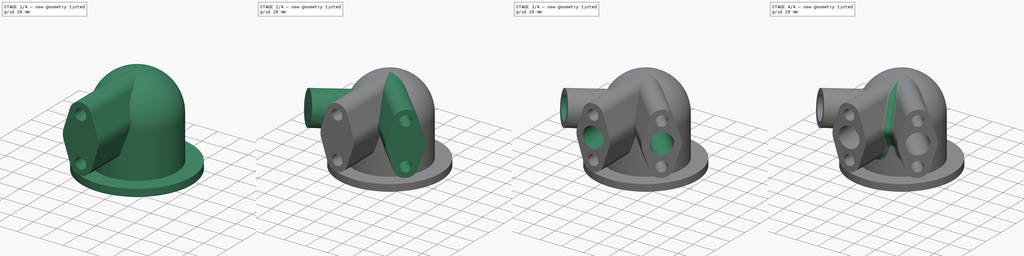
[diagram: build sequence overview — one tinted view per stage of 4, left to right]
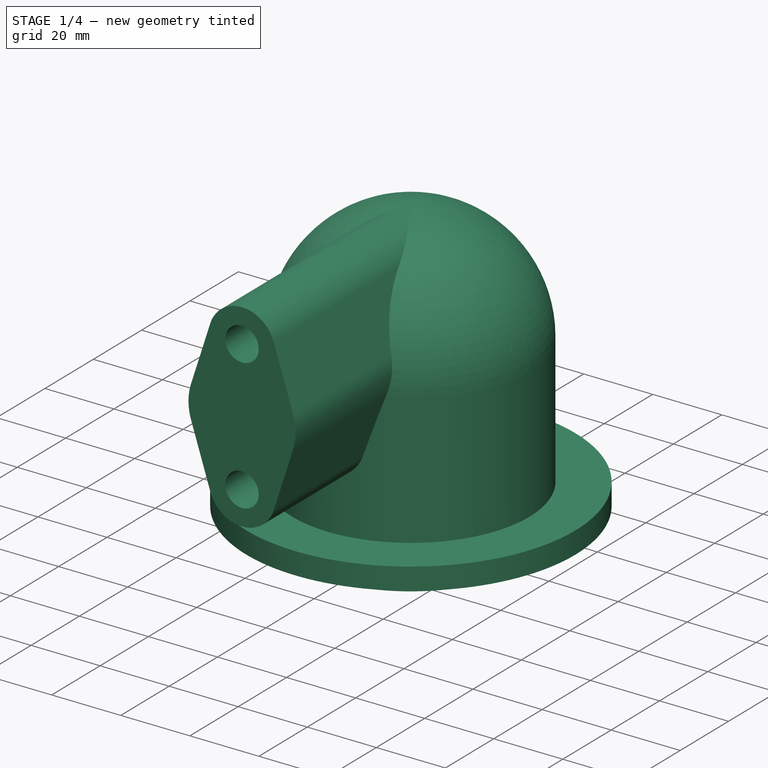
[diagram: stage 1 of 4 — iso view after this stage's code; geometry added in this stage tinted green]
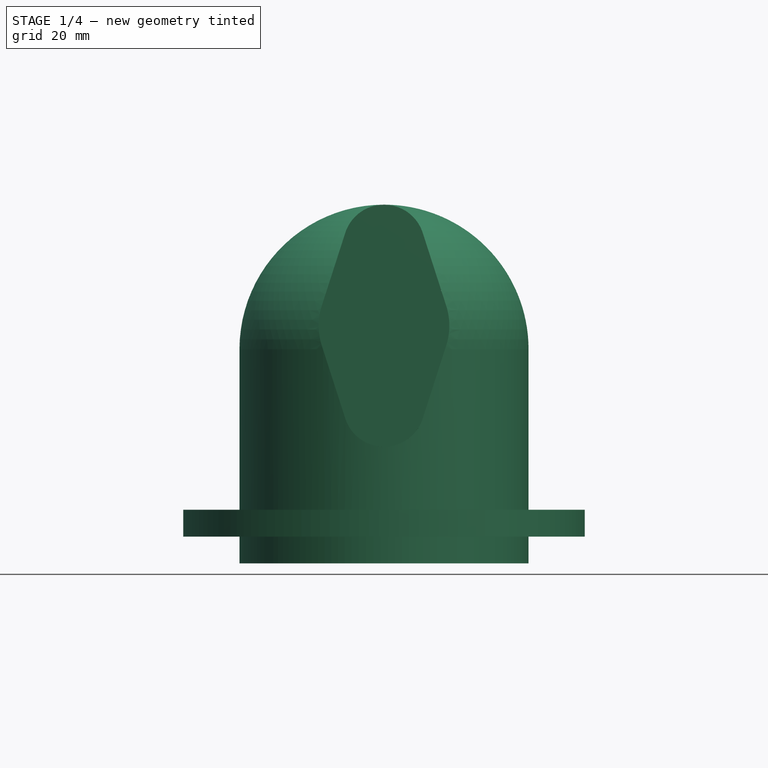
[diagram: stage 1 of 4 — front view after this stage's code; geometry added in this stage tinted green]
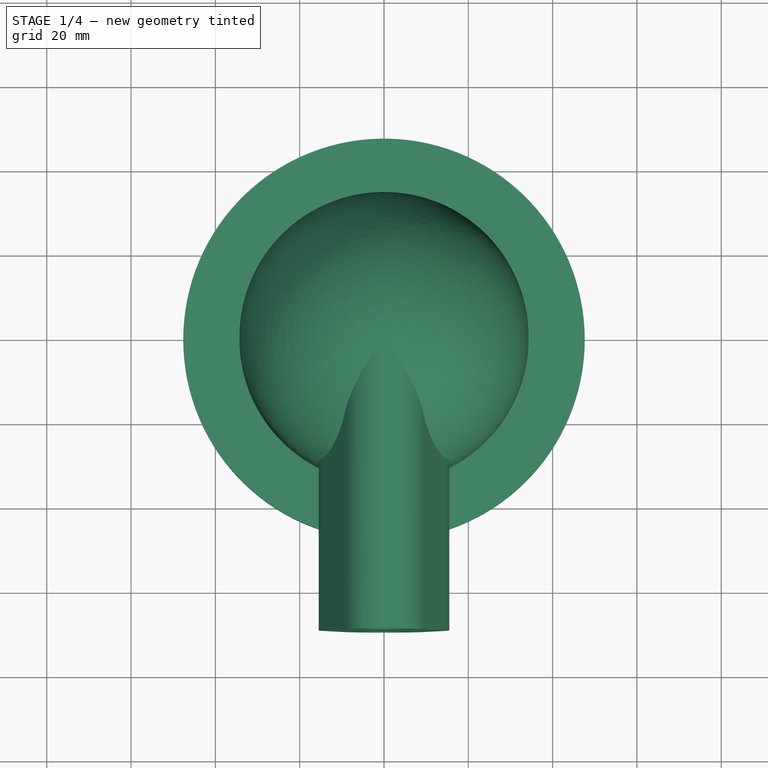
[diagram: stage 1 of 4 — top view after this stage's code; geometry added in this stage tinted green]
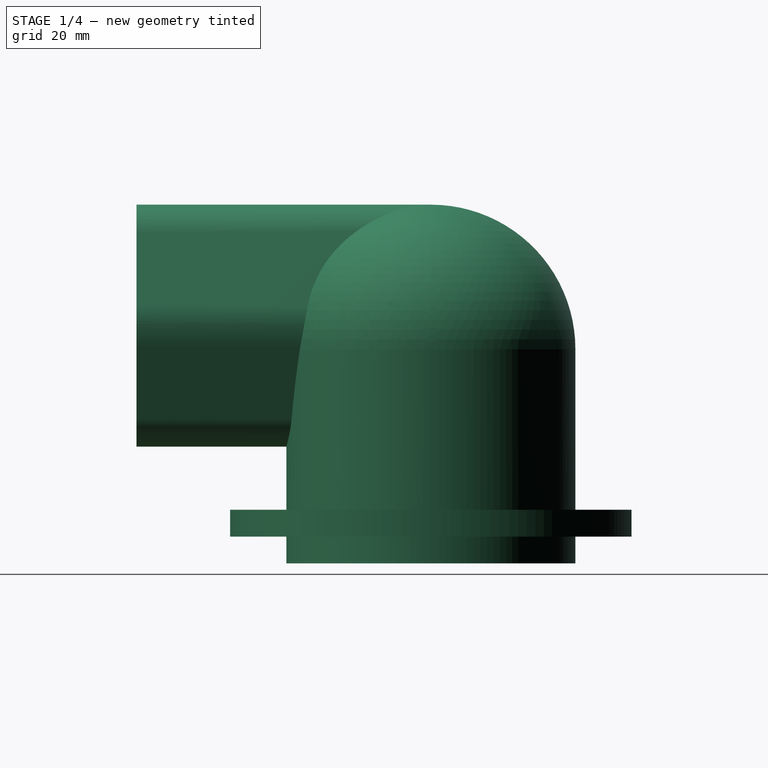
[diagram: stage 1 of 4 — right view after this stage's code; geometry added in this stage tinted green]
FCSTD DOCUMENT  (FreeCAD 1.1R39057 (Git))
Label: ModelMania_2010_D01
License: All rights reserved
LicenseURL: http://en.wikipedia.org/wiki/All_rights_reserved
objects: Sketcher::SketchObject×8, PartDesign::Pocket×3, PartDesign::Revolution×2, PartDesign::PolarPattern×2, PartDesign::Groove×2, PartDesign::Fillet×2, PartDesign::Pad×1, PartDesign::Body×1
note: 51 computed .brp shape members not serialized (recipe doc carries the construction recipe); baked Part::Feature solids carry a one-line shape summary decoded from their .brp

FEATURE [Sketcher::SketchObject] Sketch
  ArcFitTolerance = 0
  AttachmentSupport = -> [XZ_Plane]
  FullyConstrained = true
  MakeInternals = false
  MapMode = 5
  Placement = pos=(0,0,0) rot=(1,0,0;1.5708rad)
  sketch-geometry (8):
    g0: ArcOfCircle CenterX=0 CenterY=50.8 CenterZ=0 NormalX=0 NormalY=0 NormalZ=1 AngleXU=0 Radius=34.29 StartAngle=0 EndAngle=1.5708
    g1: LineSegment StartX=34.29 StartY=50.8 StartZ=0 EndX=34.29 EndY=12.7 EndZ=0
    g2: LineSegment StartX=34.29 StartY=0 StartZ=0 EndX=0 EndY=0 EndZ=0
    g3: LineSegment StartX=2.1e-15 StartY=85.09 StartZ=0 EndX=0 EndY=0 EndZ=0
    g4: LineSegment StartX=34.29 StartY=6.35 StartZ=0 EndX=47.625 EndY=6.35 EndZ=0
    g5: LineSegment StartX=47.625 StartY=6.35 StartZ=0 EndX=47.625 EndY=12.7 EndZ=0
    g6: LineSegment StartX=47.625 StartY=12.7 StartZ=0 EndX=34.29 EndY=12.7 EndZ=0
    g7: LineSegment StartX=34.29 StartY=6.35 StartZ=0 EndX=34.29 EndY=0 EndZ=0
  constraints (24):
    c: PointOnObject(g0,g-2)
    c: PointOnObject(g0,g-2)
    c: Horizontal(g0,g0)
    c: DistanceY(g-1,g0) = 85.09
    c: Radius(g0) = 34.29
    c: Tangent(g0,g1) = 1.5708
    c: Coincident(g3,g0)
    c: Coincident(g7,g2)
    c: Horizontal(g2)
    c: Coincident(g4,g5)
    c: Coincident(g5,g6)
    c: Vertical(g5)
    c: Horizontal(g4)
    c: Horizontal(g6)
    c: PointOnObject(g4,g7)
    c: Coincident(g1,g6)
    c: PointOnObject(g7,g4)
    c: Vertical(g7)
    c: Equal(g4,g6)
    c: DistanceY(g5,g5) = 6.35
    c: DistanceX(g4) = 47.625
    c: Coincident(g2,g-1)
    c: Coincident(g3,g2)
    c: Equal(g5,g7)
FEATURE [PartDesign::Revolution] Revolution  label="dome"
  Angle = 360
  Angle2 = 60
  Axis = (0,2e-16,1)
  Base = (0,0,0)
  Placement = pos=(0,0,0) rot=(1,0,0;1.5708rad)
  Profile = -> Sketch
  ReferenceAxis = -> Sketch [V_Axis]
  Refine = true
  Suppressed = false
  Type = 0
FEATURE [Sketcher::SketchObject] Sketch001
  ArcFitTolerance = 1e-06
  AttachmentSupport = -> [XZ_Plane]
  FullyConstrained = true
  MakeInternals = false
  MapMode = 5
  Placement = pos=(0,0,0) rot=(1,0,0;1.5708rad)
  sketch-geometry (9):
    g0: LineSegment [constr] StartX=0 StartY=75.438 StartZ=0 EndX=0 EndY=37.338 EndZ=0
    g1: ArcOfCircle CenterX=0 CenterY=75.438 CenterZ=0 NormalX=0 NormalY=0 NormalZ=1 AngleXU=0 Radius=9.652 StartAngle=0.311689 EndAngle=2.8299
    g2: ArcOfCircle CenterX=0 CenterY=37.338 CenterZ=0 NormalX=0 NormalY=0 NormalZ=1 AngleXU=0 Radius=9.652 StartAngle=3.45328 EndAngle=5.9715
    g3: ArcOfCircle CenterX=0 CenterY=56.388 CenterZ=0 NormalX=0 NormalY=0 NormalZ=1 AngleXU=0 Radius=15.494 StartAngle=2.8299 EndAngle=3.45328
    g4: ArcOfCircle CenterX=0 CenterY=56.388 CenterZ=0 NormalX=0 NormalY=0 NormalZ=1 AngleXU=0 Radius=15.494 StartAngle=5.9715 EndAngle=6.59487
    g5: LineSegment StartX=-14.7475 StartY=61.1395 StartZ=0 EndX=-9.18694 EndY=78.3979 EndZ=0
    g6: LineSegment StartX=9.18694 StartY=78.3979 StartZ=0 EndX=14.7475 EndY=61.1395 EndZ=0
    g7: LineSegment StartX=14.7475 StartY=51.6365 StartZ=0 EndX=9.18694 EndY=34.3781 EndZ=0
    g8: LineSegment StartX=-9.18694 StartY=34.3781 StartZ=0 EndX=-14.7475 EndY=51.6365 EndZ=0
  constraints (20):
    c: PointOnObject(g0,g-2)
    c: Vertical(g0)
    c: DistanceY(g0,g0) = 38.1
    c: Coincident(g1,g0)
    c: Coincident(g2,g0)
    c: Symmetric(g0,g0,g3)
    c: Coincident(g4,g3)
    c: Tangent(g7,g2) = 1.5708
    c: Tangent(g7,g4) = 1.5708
    c: Tangent(g6,g4) = 1.5708
    c: Tangent(g6,g1) = 1.5708
    c: Tangent(g5,g1) = 1.5708
    c: Tangent(g5,g3) = 1.5708
    c: Tangent(g8,g3) = 1.5708
    c: Tangent(g8,g2) = 1.5708
    c: Radius(g1) = 9.652
    c: Radius(g4) = 15.494
    c: Equal(g1,g2)
    c: Equal(g3,g4)
    c: DistanceY(g3) = 56.388
FEATURE [PartDesign::Pad] Pad  label="flange extension"
  BaseFeature = -> Revolution
  Direction = (0,-1,0)
  Length = 69.85
  Length2 = 10
  Placement = pos=(0,0,0) rot=(1,0,0;1.5708rad)
  Profile = -> Sketch001
  ReferenceAxis = -> Sketch001 [N_Axis]
  Refine = true
  Suppressed = false
  Type = 0
FEATURE [Sketcher::SketchObject] Sketch002
  ArcFitTolerance = 1e-06
  AttachmentOffset = pos=(0,0,69.85) rot=(0,0,1;0rad)
  AttachmentSupport = -> [XZ_Plane]
  ExternalGeometry = -> [Sketch001]
  FullyConstrained = true
  MakeInternals = false
  MapMode = 5
  Placement = pos=(0,-69.85,1.55e-14) rot=(1,0,0;1.5708rad)
  sketch-geometry (2):
    g0: Circle CenterX=0 CenterY=75.438 CenterZ=0 NormalX=0 NormalY=0 NormalZ=1 AngleXU=0 Radius=4.826
    g1: Circle CenterX=0 CenterY=37.338 CenterZ=0 NormalX=0 NormalY=0 NormalZ=1 AngleXU=0 Radius=4.826
  constraints (4):
    c: Coincident(g0,g-3)
    c: Diameter(g1) = 9.652
    c: Coincident(g1,g-4)
    c: Equal(g0,g1)
FEATURE [PartDesign::Pocket] Pocket  label="blind holes, flange ext."
  BaseFeature = -> Pad
  Direction = (0,1,0)
  Length = 25.4
  Length2 = 5
  Placement = pos=(0,0,0) rot=(1,0,0;1.5708rad)
  Profile = -> Sketch002
  ReferenceAxis = -> Sketch002 [N_Axis]
  Refine = true
  Suppressed = false
  Type = 0
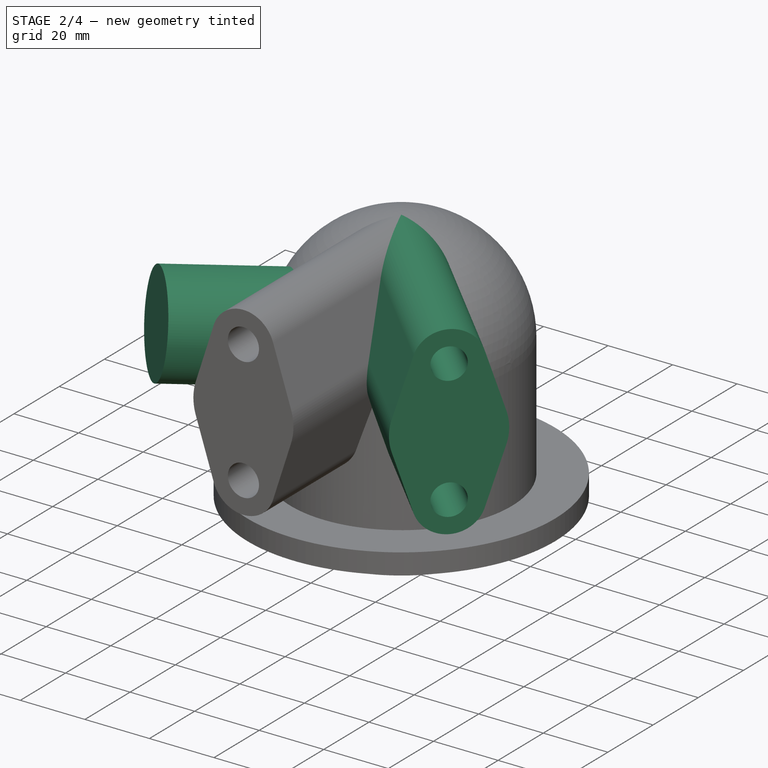
[diagram: stage 2 of 4 — iso view after this stage's code; geometry added in this stage tinted green]
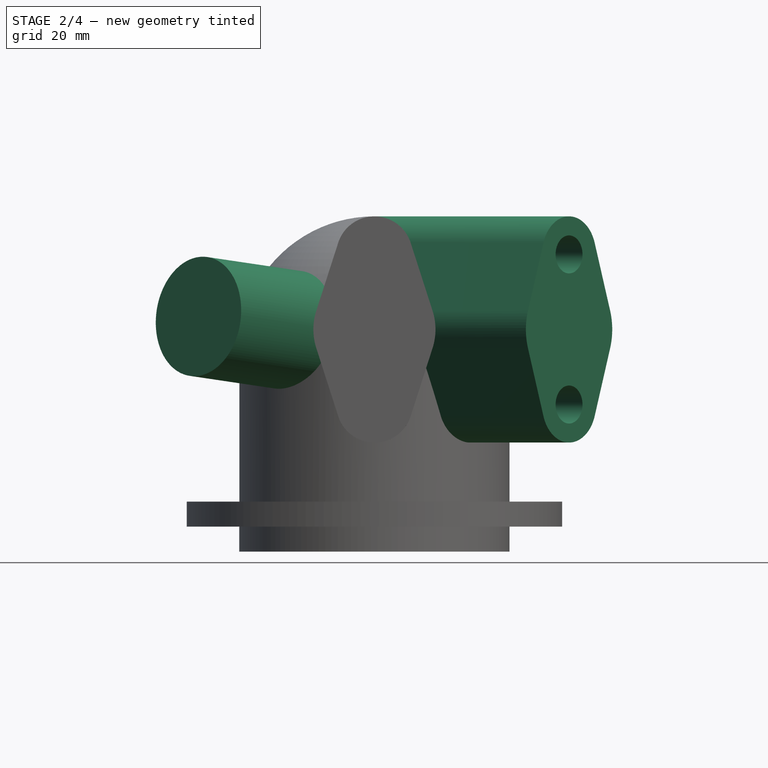
[diagram: stage 2 of 4 — front view after this stage's code; geometry added in this stage tinted green]
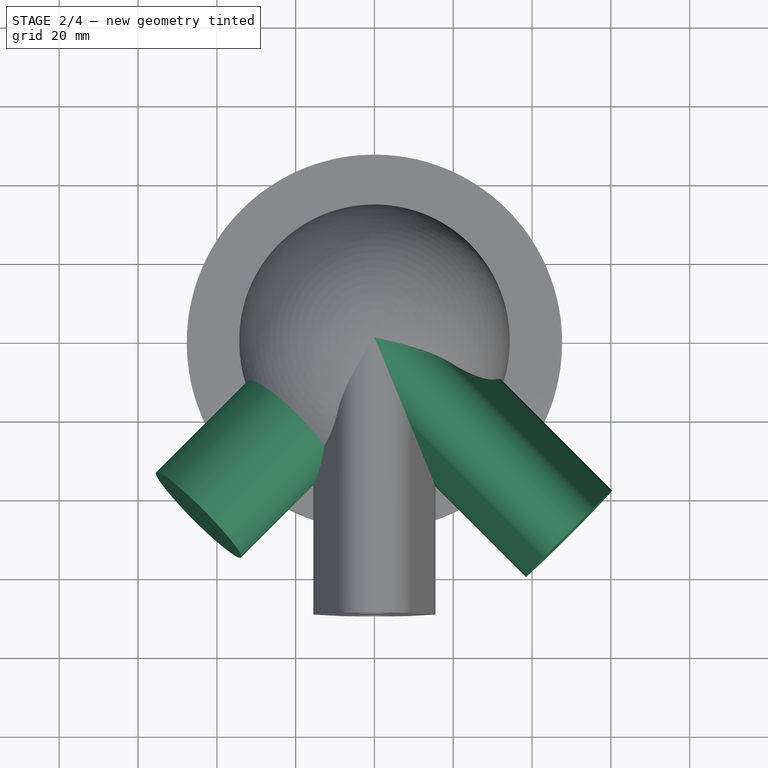
[diagram: stage 2 of 4 — top view after this stage's code; geometry added in this stage tinted green]
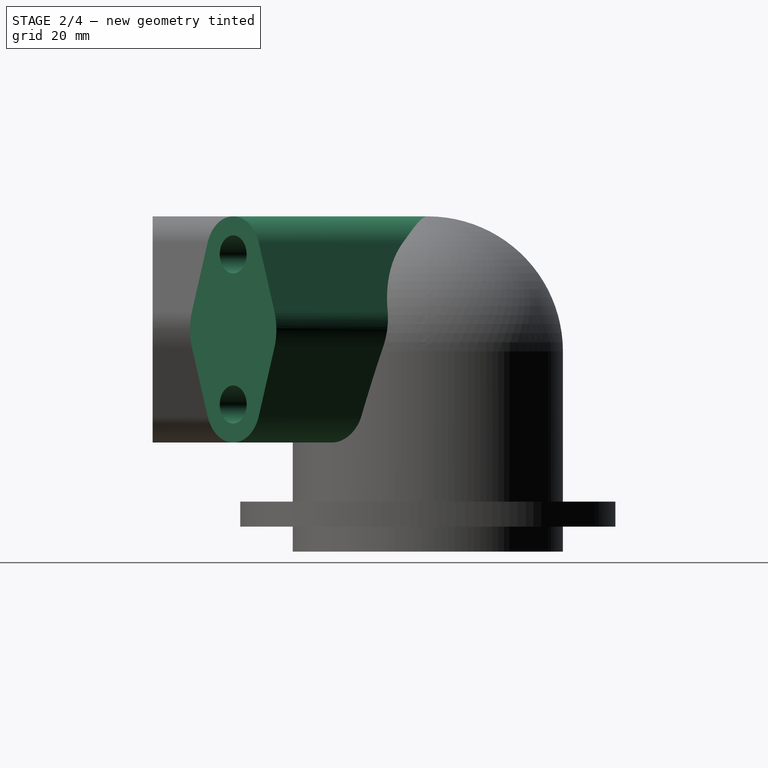
[diagram: stage 2 of 4 — right view after this stage's code; geometry added in this stage tinted green]
FEATURE [PartDesign::PolarPattern] PolarPattern  label="flange ext., pttrn"
  Angle = 45
  Axis = -> Z_Axis
  BaseFeature = -> Pocket
  Mode = 0
  Occurrences = 2
  Offset = 120
  Originals = -> [Pad,Pocket]
  Placement = pos=(0,0,0) rot=(1,0,0;1.5708rad)
  Refine = true
  Suppressed = false
  TransformMode = 0
FEATURE [Sketcher::SketchObject] Sketch003
  ArcFitTolerance = 1e-06
  AttachmentOffset = pos=(0,0,0) rot=(0,1,0;0.785398rad)
  AttachmentSupport = -> [XZ_Plane]
  FullyConstrained = true
  MakeInternals = false
  MapMode = 5
  Placement = pos=(0,0,0) rot=(0.862856,0.357407,0.357407;1.71777rad)
  sketch-geometry (4):
    g0: LineSegment StartX=-63.1521 StartY=59.69 StartZ=0 EndX=0 EndY=53.0524 EndZ=0
    g1: LineSegment StartX=0 StartY=53.0524 StartZ=0 EndX=1.59301 EndY=68.209 EndZ=0
    g2: LineSegment StartX=1.59301 StartY=68.209 StartZ=0 EndX=-61.5591 EndY=74.8465 EndZ=0
    g3: LineSegment StartX=-61.5591 StartY=74.8465 StartZ=0 EndX=-63.1521 EndY=59.69 EndZ=0
  constraints (12):
    c: Coincident(g1,g0)
    c: Coincident(g2,g1)
    c: Coincident(g3,g0)
    c: Perpendicular(g0,g1)
    c: Parallel(g3,g1)
    c: Parallel(g0,g2)
    c: Distance(g3,g3) = 15.24
    c: Distance(g2,g2) = 63.5
    c: Coincident(g3,g2)
    c: PointOnObject(g0,g-2)
    c: DistanceY(g0) = 59.69
    c: Angle(g0,g-1) = 0.10472
FEATURE [PartDesign::Revolution] Revolution001  label="pipe extension"
  Angle = 360
  Angle2 = 60
  Axis = (0.703233,0.703233,-0.104528)
  Base = (-44.6553,-44.6553,59.69)
  BaseFeature = -> PolarPattern
  Placement = pos=(0,0,0) rot=(1,0,0;1.5708rad)
  Profile = -> Sketch003
  ReferenceAxis = -> Sketch003 [Edge1]
  Refine = true
  Suppressed = false
  Type = 0
FEATURE [Sketcher::SketchObject] Sketch004
  ArcFitTolerance = 1e-06
  AttachmentSupport = -> [XZ_Plane]
  ExternalGeometry = -> [Sketch]
  FullyConstrained = true
  MakeInternals = false
  MapMode = 5
  Placement = pos=(0,0,0) rot=(1,0,0;1.5708rad)
  sketch-geometry (4):
    g0: ArcOfCircle CenterX=0 CenterY=50.8 CenterZ=0 NormalX=0 NormalY=0 NormalZ=1 AngleXU=0 Radius=27.94 StartAngle=2e-16 EndAngle=1.5708
    g1: LineSegment StartX=27.94 StartY=50.8 StartZ=0 EndX=27.94 EndY=0 EndZ=0
    g2: LineSegment StartX=27.94 StartY=0 StartZ=0 EndX=0 EndY=0 EndZ=0
    g3: LineSegment StartX=1.7e-15 StartY=0 StartZ=0 EndX=1.7e-15 EndY=78.74 EndZ=0
  constraints (10):
    c: Coincident(g0,g-3)
    c: Tangent(g0,g1) = 1.5708
    c: Coincident(g1,g2)
    c: Coincident(g2,g-1)
    c: Horizontal(g2)
    c: Coincident(g2,g3)
    c: Coincident(g3,g0)
    c: Vertical(g3)
    c: Vertical(g1)
    c: Distance(g1,g-4) = 6.35
FEATURE [PartDesign::Groove] Groove  label="void, dome"
  Angle = 360
  Angle2 = 60
  Axis = (0,2e-16,1)
  Base = (0,0,0)
  BaseFeature = -> Revolution001
  Placement = pos=(0,0,0) rot=(1,0,0;1.5708rad)
  Profile = -> Sketch004
  ReferenceAxis = -> Sketch004 [V_Axis]
  Refine = true
  Suppressed = false
  Type = 0
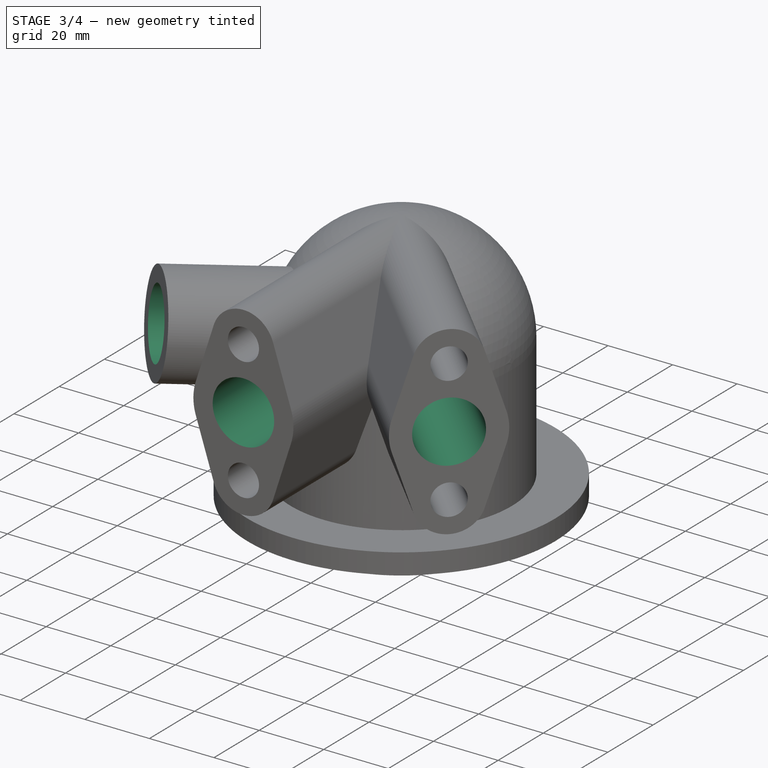
[diagram: stage 3 of 4 — iso view after this stage's code; geometry added in this stage tinted green]
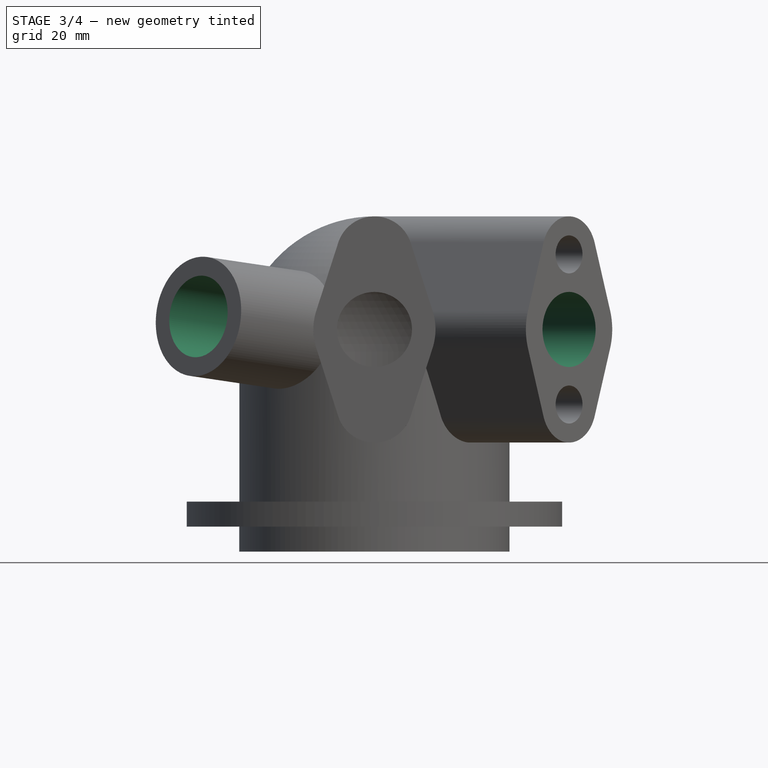
[diagram: stage 3 of 4 — front view after this stage's code; geometry added in this stage tinted green]
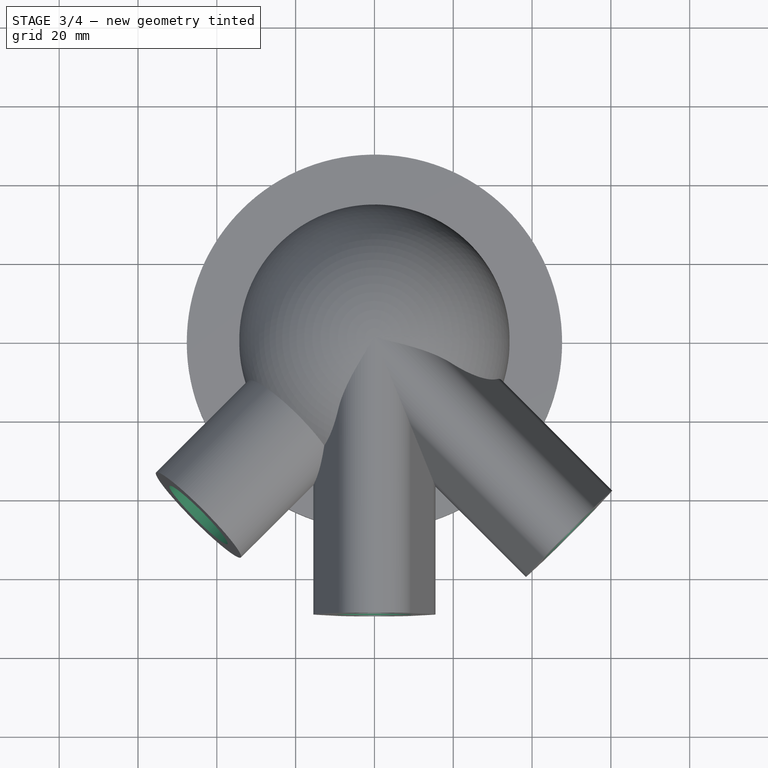
[diagram: stage 3 of 4 — top view after this stage's code; geometry added in this stage tinted green]
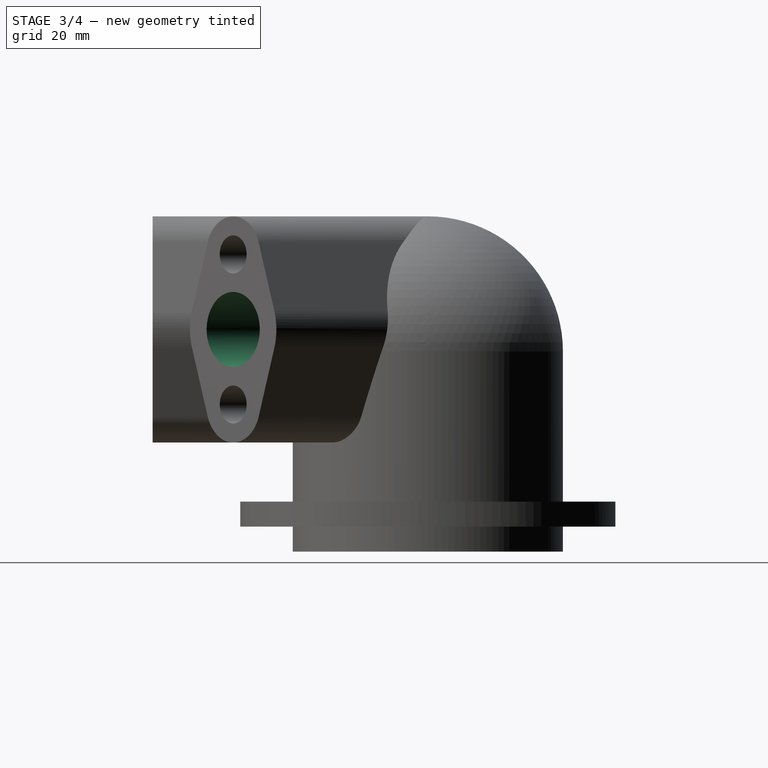
[diagram: stage 3 of 4 — right view after this stage's code; geometry added in this stage tinted green]
FEATURE [Sketcher::SketchObject] Sketch005
  ArcFitTolerance = 1e-06
  AttachmentSupport = -> [XZ_Plane]
  ExternalGeometry = -> [Sketch001]
  FullyConstrained = true
  MakeInternals = false
  MapMode = 5
  Placement = pos=(0,0,0) rot=(1,0,0;1.5708rad)
  sketch-geometry (1):
    g0: Circle CenterX=0 CenterY=56.388 CenterZ=0 NormalX=0 NormalY=0 NormalZ=1 AngleXU=0 Radius=9.525
  constraints (2):
    c: Coincident(g0,g-3)
    c: Diameter(g0) = 19.05
FEATURE [PartDesign::Pocket] Pocket001  label="center hole, flange ext."
  BaseFeature = -> Groove
  Direction = (0,1,0)
  Length = 5
  Length2 = 5
  Placement = pos=(0,0,0) rot=(1,0,0;1.5708rad)
  Profile = -> Sketch005
  ReferenceAxis = -> Sketch005 [N_Axis]
  Refine = true
  Reversed = true
  Suppressed = false
  Type = 1
FEATURE [PartDesign::PolarPattern] PolarPattern001  label="center hole, flange ext., pttrn"
  Angle = 45
  Axis = -> Z_Axis
  BaseFeature = -> Pocket001
  Mode = 0
  Occurrences = 2
  Offset = 120
  Originals = -> [Pocket001]
  Placement = pos=(0,0,0) rot=(1,0,0;1.5708rad)
  Refine = true
  Suppressed = false
  TransformMode = 0
FEATURE [Sketcher::SketchObject] Sketch006
  ArcFitTolerance = 1e-06
  AttachmentSupport = -> [Sketch003]
  ExternalGeometry = -> [Sketch003]
  FullyConstrained = true
  MakeInternals = false
  MapMode = 7
  Placement = pos=(-44.6553,-44.6553,59.69) rot=(0.850271,-0.352194,-0.391151;1.62805rad)
  sketch-geometry (1):
    g0: Circle CenterX=0 CenterY=0 CenterZ=0 NormalX=0 NormalY=0 NormalZ=1 AngleXU=0 Radius=10.414
  constraints (2):
    c: Diameter(g0) = 20.828
    c: Coincident(g0,g-1)
FEATURE [PartDesign::Pocket] Pocket002  label="center hole, pipe extension"
  BaseFeature = -> PolarPattern001
  Direction = (0.7032,0.7032,-0.1045)
  Length = 63.5
  Length2 = 5
  Placement = pos=(0,0,0) rot=(1,0,0;1.5708rad)
  Profile = -> Sketch006
  ReferenceAxis = -> Sketch006 [N_Axis]
  Refine = true
  Suppressed = false
  Type = 0
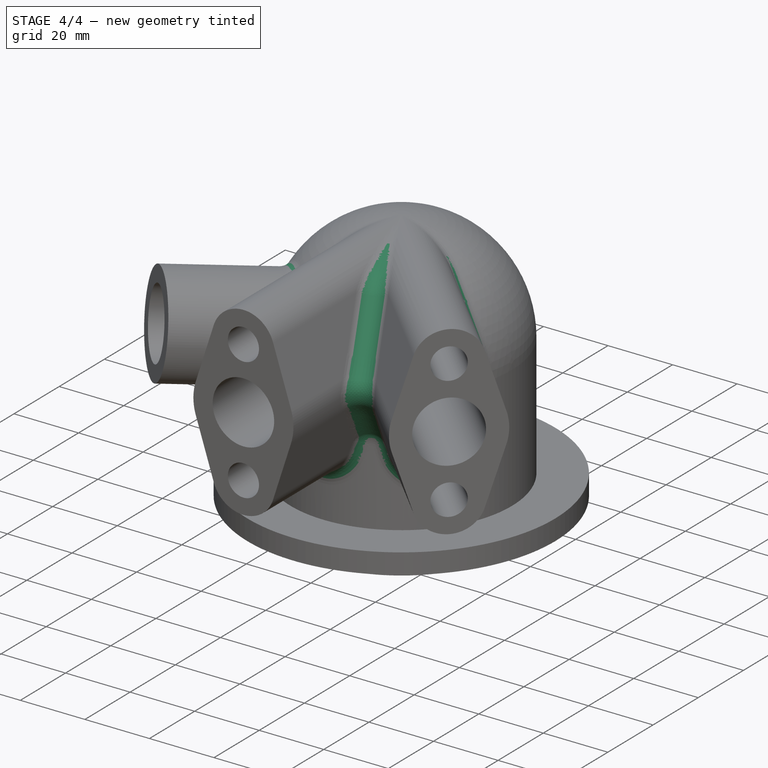
[diagram: stage 4 of 4 — iso view after this stage's code; geometry added in this stage tinted green]
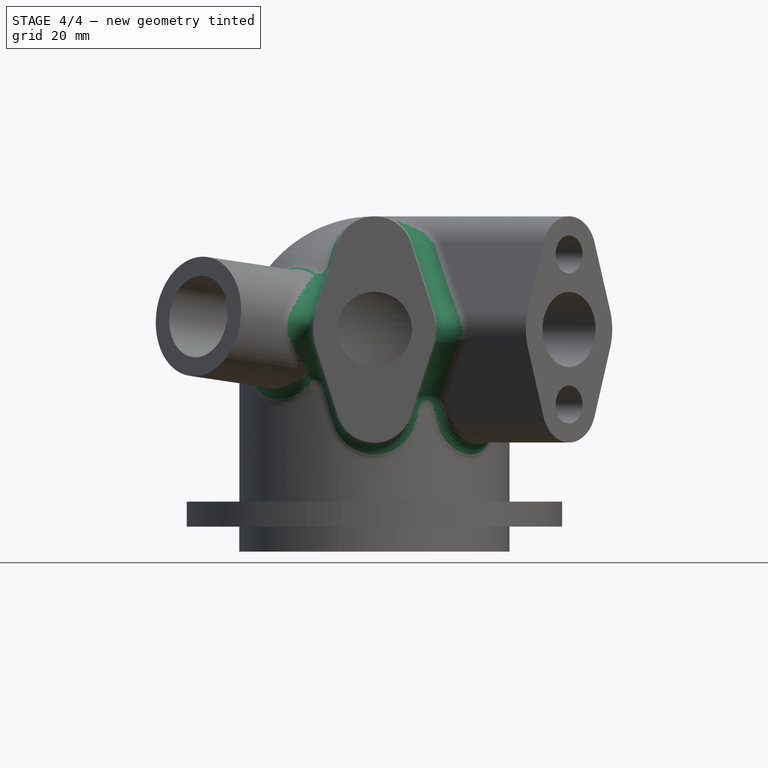
[diagram: stage 4 of 4 — front view after this stage's code; geometry added in this stage tinted green]
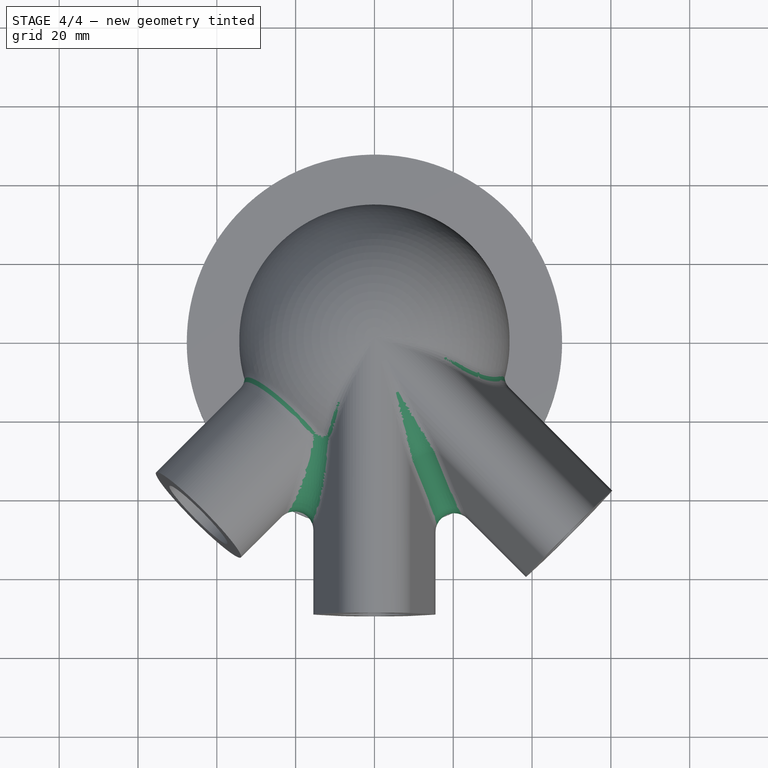
[diagram: stage 4 of 4 — top view after this stage's code; geometry added in this stage tinted green]
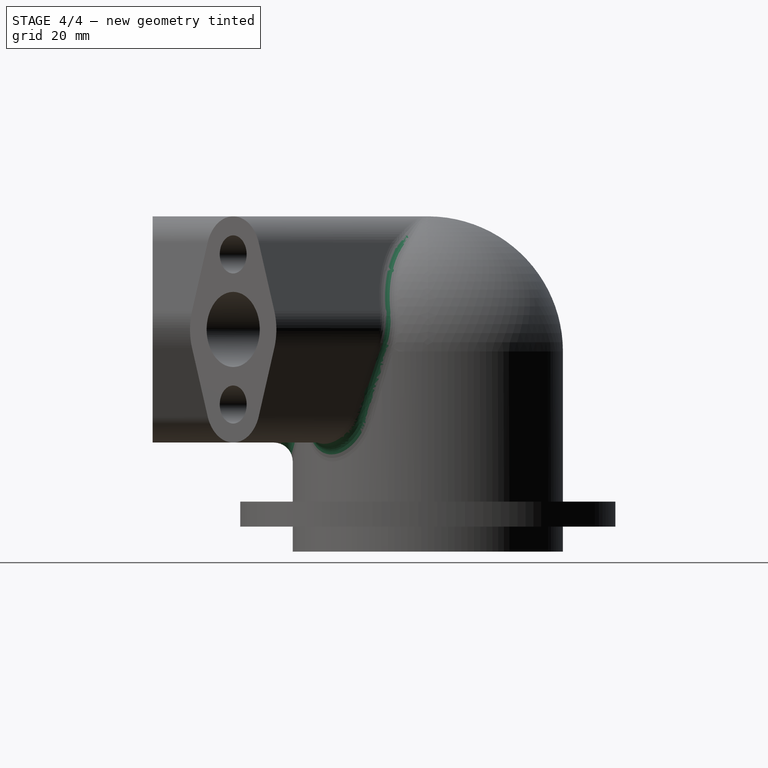
[diagram: stage 4 of 4 — right view after this stage's code; geometry added in this stage tinted green]
FEATURE [PartDesign::Fillet] Fillet  label="radius, vertical"
  Base = -> Pocket002 [Edge39,Edge5]
  BaseFeature = -> Pocket002
  Placement = pos=(0,0,0) rot=(1,0,0;1.5708rad)
  Radius = 4.7752
  Refine = true
  SupportTransform = false
  Suppressed = false
  UseAllEdges = false
FEATURE [Sketcher::SketchObject] Sketch007
  ArcFitTolerance = 1e-06
  AttachmentSupport = -> [XZ_Plane]
  ExternalGeometry = -> [Sketch]
  FullyConstrained = true
  MakeInternals = false
  MapMode = 5
  Placement = pos=(0,0,0) rot=(1,0,0;1.5708rad)
  sketch-geometry (4):
    g0: LineSegment StartX=0 StartY=85.3431 StartZ=0 EndX=0 EndY=85.0891 EndZ=0
    g1: LineSegment StartX=0 StartY=85.0891 StartZ=0 EndX=0.254 EndY=85.0891 EndZ=0
    g2: LineSegment StartX=0.254 StartY=85.0891 StartZ=0 EndX=0.254 EndY=85.3431 EndZ=0
    g3: LineSegment StartX=0.254 StartY=85.3431 StartZ=0 EndX=0 EndY=85.3431 EndZ=0
  constraints (12):
    c: Coincident(g0,g1)
    c: Coincident(g1,g2)
    c: Coincident(g2,g3)
    c: Coincident(g3,g0)
    c: Vertical(g0)
    c: Vertical(g2)
    c: Horizontal(g1)
    c: Horizontal(g3)
    c: PointOnObject(g0,g-2)
    c: Equal(g1,g2)
    c: PointOnObject(g1,g-3)
    c: DistanceX(g3,g3) = 0.254
FEATURE [PartDesign::Groove] Groove001
  Angle = 360
  Angle2 = 60
  Axis = (1e-16,1e-16,1)
  Base = (0,0,0)
  BaseFeature = -> Fillet
  Placement = pos=(0,0,0) rot=(1,0,0;1.5708rad)
  Profile = -> Sketch007
  ReferenceAxis = -> Z_Axis
  Refine = true
  Suppressed = false
  Type = 0
FEATURE [PartDesign::Fillet] Fillet001  label="radius, around"
  Base = -> Groove001 [Edge24]
  BaseFeature = -> Groove001
  Placement = pos=(0,0,0) rot=(1,0,0;1.5708rad)
  Radius = 4.7752
  Refine = true
  SupportTransform = false
  Suppressed = false
  UseAllEdges = false
FEATURE [PartDesign::Body] Body
  AllowCompound = false
  Group = -> [Sketch,Revolution,Sketch001,Pad,Sketch002,Pocket,PolarPattern,Sketch003,Revolution001,Sketch004,Groove,Sketch005,Pocket001,PolarPattern001,Sketch006,Pocket002,Fillet,Sketch007,Groove001,Fillet001]
  Origin = -> Origin
  Tip = -> Pocket002
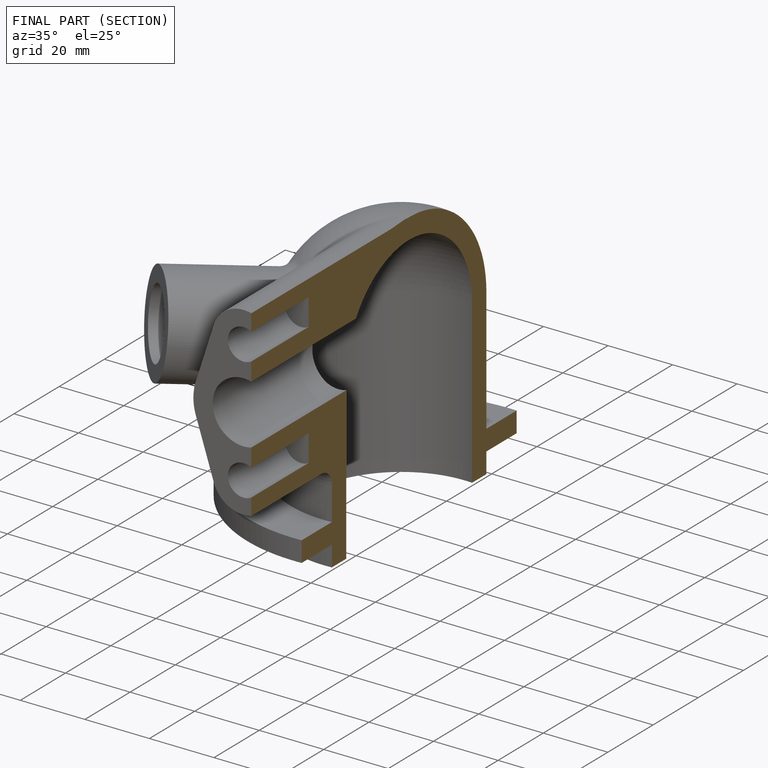
[diagram: finished part — half-section view (interior)]
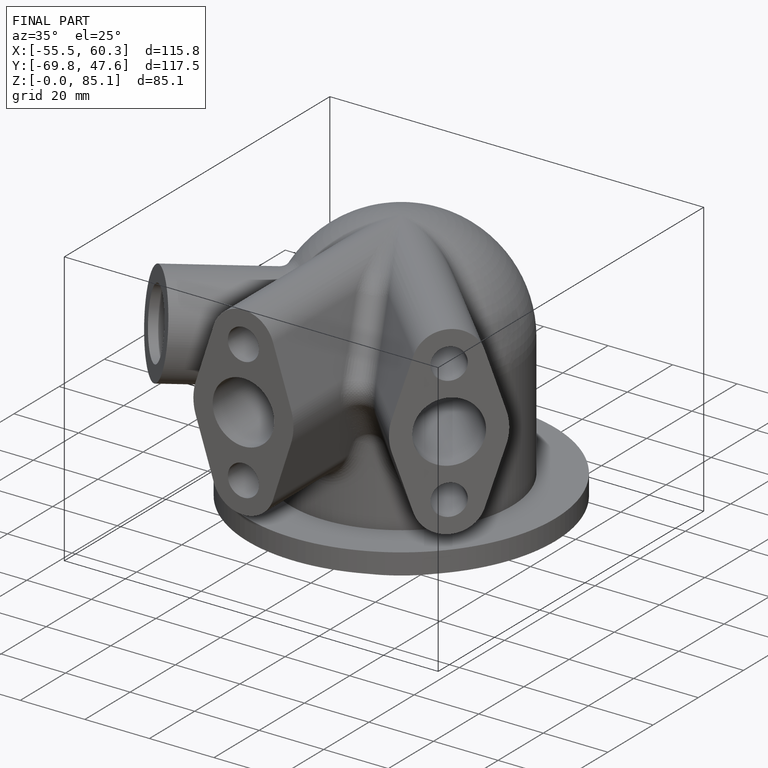
[diagram: finished part — iso view with bounding-box wireframe]
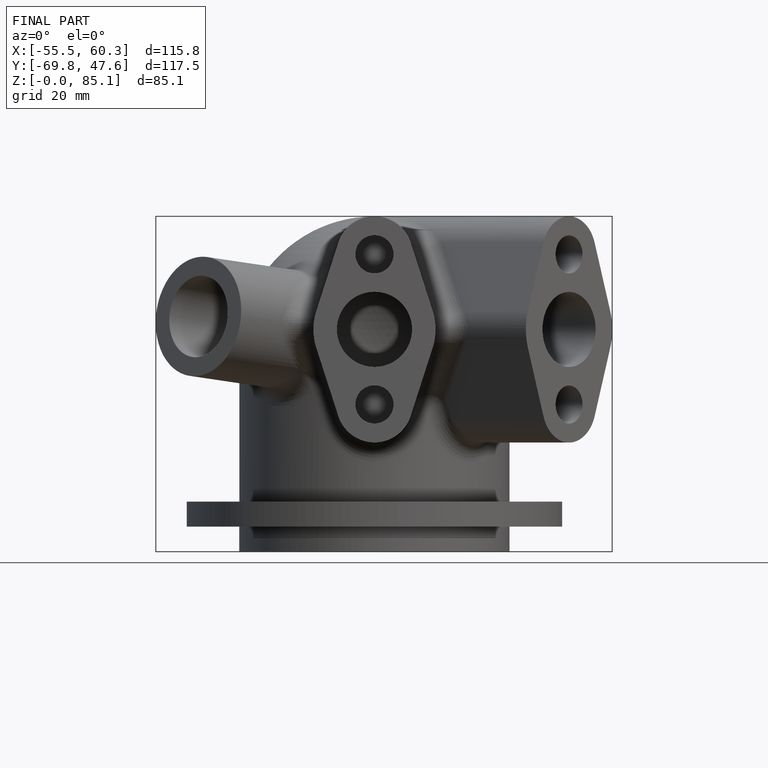
[diagram: finished part — front view with bounding-box wireframe]
